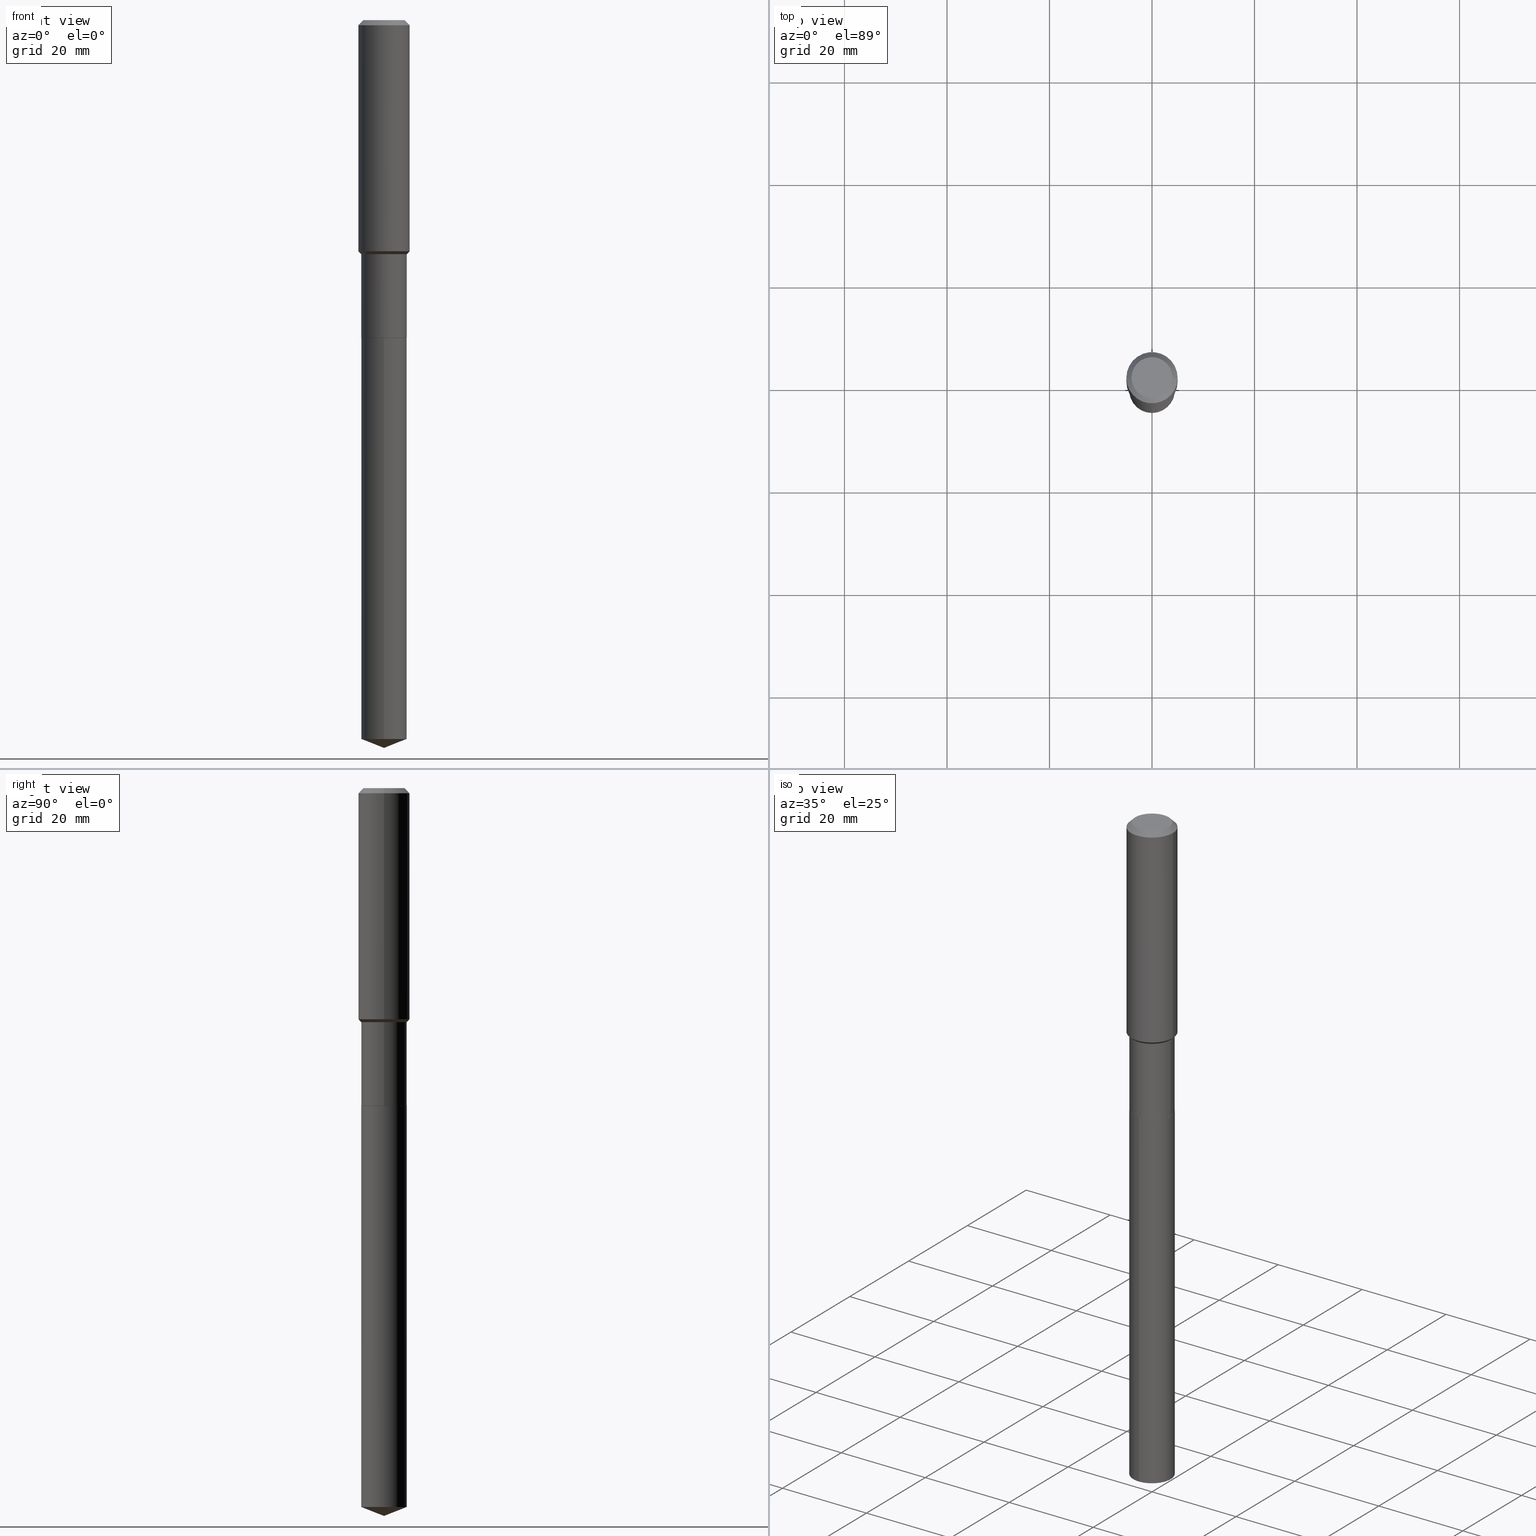
[diagram: canonical four-view strip — front | top / right | iso, engineering-drawing reading convention]
A machine part, canonical four-view strip (front | top / right | iso — engineering-drawing reading convention). The complete STEP part file that produces these views, byte-faithful:
ISO-10303-21;
HEADER;
FILE_DESCRIPTION (( 'STEP AP203' ),
    '1' );
FILE_NAME ('66665.STEP',
    '2024-04-25T03:12:09',
    ( '' ),
    ( '' ),
    'SwSTEP 2.0',
    'SolidWorks 2023',
    '' );
FILE_SCHEMA (( 'CONFIG_CONTROL_DESIGN' ));
ENDSEC;

DATA;
#1 = CARTESIAN_POINT ( 'NONE',  ( 1.244870873051829791E-15, 0.1751999999999806212, -5.521486884672262896 ) ) ;
#2 = EDGE_CURVE ( 'NONE', #385, #469, #427, .T. ) ;
#3 = VERTEX_POINT ( 'NONE', #216 ) ;
#4 = LINE ( 'NONE', #311, #272 ) ;
#5 = ORIENTED_EDGE ( 'NONE', *, *, #151, .T. ) ;
#6 = VECTOR ( 'NONE', #190, 39.37007874015748143 ) ;
#7 = FACE_OUTER_BOUND ( 'NONE', #226, .T. ) ;
#8 = EDGE_LOOP ( 'NONE', ( #50, #55 ) ) ;
#9 =( LENGTH_UNIT ( ) NAMED_UNIT ( * ) SI_UNIT ( $, .METRE. ) );
#10 = ORIENTED_EDGE ( 'NONE', *, *, #192, .T. ) ;
#11 = ADVANCED_FACE ( 'NONE', ( #290 ), #440, .T. ) ;
#12 = LINE ( 'NONE', #59, #57 ) ;
#13 = ORIENTED_EDGE ( 'NONE', *, *, #179, .T. ) ;
#14 = CALENDAR_DATE ( 2024, 24, 4 ) ;
#15 = CIRCLE ( 'NONE', #418, 0.1751999999999999946 ) ;
#16 = CIRCLE ( 'NONE', #149, 0.1751999999999999946 ) ;
#17 = APPROVAL_PERSON_ORGANIZATION ( #465, #395, #127 ) ;
#18 = EDGE_LOOP ( 'NONE', ( #242, #347, #199, #315 ) ) ;
#19 = CYLINDRICAL_SURFACE ( 'NONE', #156, 0.1751999999999999946 ) ;
#20 = DIRECTION ( 'NONE',  ( 1.000000000000000000, -6.982962677686266711E-15, 0.000000000000000000 ) ) ;
#21 = DIRECTION ( 'NONE',  ( 0.000000000000000000, 0.000000000000000000, 1.000000000000000000 ) ) ;
#22 = DIRECTION ( 'NONE',  ( -2.445468806185136597E-29, 3.491481338843145583E-15, 1.000000000000000000 ) ) ;
#23 = EDGE_CURVE ( 'NONE', #184, #122, #72, .T. ) ;
#24 = DIRECTION ( 'NONE',  ( 1.000000000000000000, -6.982962677686265922E-15, 0.000000000000000000 ) ) ;
#25 = CIRCLE ( 'NONE', #214, 0.1751999999999999946 ) ;
#26 = APPROVAL_PERSON_ORGANIZATION ( #405, #254, #177 ) ;
#27 = CARTESIAN_POINT ( 'NONE',  ( 0.1751999999999999391, -1.223415061130633483E-15, 8.543061711194476516E-30 ) ) ;
#28 = CALENDAR_DATE ( 2024, 24, 4 ) ;
#29 = ADVANCED_FACE ( 'NONE', ( #438 ), #302, .T. ) ;
#30 = FACE_OUTER_BOUND ( 'NONE', #92, .T. ) ;
#31 = DIRECTION ( 'NONE',  ( 2.438088387897960049E-29, -3.491481338843145188E-15, -1.000000000000000000 ) ) ;
#32 = EDGE_CURVE ( 'NONE', #313, #321, #293, .T. ) ;
#33 = APPROVAL_PERSON_ORGANIZATION ( #394, #175, #209 ) ;
#34 = APPLICATION_CONTEXT ( 'configuration controlled 3d designs of mechanical parts and assemblies' ) ;
#35 = CYLINDRICAL_SURFACE ( 'NONE', #428, 0.1968500000000001082 ) ;
#36 = EDGE_CURVE ( 'NONE', #469, #385, #15, .T. ) ;
#37 = DIRECTION ( 'NONE',  ( 1.000000000000000000, -6.982962677686263555E-15, 0.000000000000000000 ) ) ;
#38 = ORIENTED_EDGE ( 'NONE', *, *, #415, .F. ) ;
#39 = DIRECTION ( 'NONE',  ( -6.497071151882113525E-15, -0.9304175679820235745, 0.3665012267242993560 ) ) ;
#40 = PRODUCT ( '66665', '66665', '', ( #169 ) ) ;
#41 = AXIS2_PLACEMENT_3D ( 'NONE', #408, #106, #74 ) ;
#42 = DIRECTION ( 'NONE',  ( -2.445428369358333970E-29, 3.491539246680648506E-15, 1.000000000000000000 ) ) ;
#43 = DIRECTION ( 'NONE',  ( -2.445468806185136877E-29, 3.491481338843145188E-15, 1.000000000000000000 ) ) ;
#44 = EDGE_CURVE ( 'NONE', #159, #83, #359, .T. ) ;
#45 = ORIENTED_EDGE ( 'NONE', *, *, #389, .F. ) ;
#46 = CARTESIAN_POINT ( 'NONE',  ( 1.244870873051754849E-15, 0.1751999999999914459, -2.440899999999999626 ) ) ;
#47 = CONICAL_SURFACE ( 'NONE', #165, 0.1746999999999999942, 0.7853981633975507526 ) ;
#48 = CALENDAR_DATE ( 2024, 24, 4 ) ;
#49 = UNCERTAINTY_MEASURE_WITH_UNIT (LENGTH_MEASURE( 1.000000000000000082E-05 ), #251, 'distance_accuracy_value', 'NONE');
#50 = ORIENTED_EDGE ( 'NONE', *, *, #2, .T. ) ;
#51 = DATE_TIME_ROLE ( 'creation_date' ) ;
#52 = CARTESIAN_POINT ( 'NONE',  ( 0.1968500000000002192, -7.575641634954907798E-15, -1.776049999999999018 ) ) ;
#53 = ORIENTED_EDGE ( 'NONE', *, *, #380, .F. ) ;
#54 = DIRECTION ( 'NONE',  ( -2.445428369358333970E-29, 3.491539246680648506E-15, 1.000000000000000000 ) ) ;
#55 = ORIENTED_EDGE ( 'NONE', *, *, #36, .T. ) ;
#56 = CARTESIAN_POINT ( 'NONE',  ( 5.969144809017297917E-29, -8.522356799982231388E-15, -2.440899999999999181 ) ) ;
#57 = VECTOR ( 'NONE', #396, 39.37007874015748854 ) ;
#58 = AXIS2_PLACEMENT_3D ( 'NONE', #235, #152, #456 ) ;
#59 = CARTESIAN_POINT ( 'NONE',  ( 0.1751999999999999114, -7.500051063968953144E-15, -1.797699999999999187 ) ) ;
#60 = APPLICATION_PROTOCOL_DEFINITION ( 'international standard', 'config_control_design', 1994, #82 ) ;
#61 = DIRECTION ( 'NONE',  ( 1.000000000000000000, -6.982962677686260400E-15, 0.000000000000000000 ) ) ;
#62 = COORDINATED_UNIVERSAL_TIME_OFFSET ( 5, 0, .BEHIND. ) ;
#63 = CARTESIAN_POINT ( 'NONE',  ( -0.1751999999999999114, -5.031765129786625160E-15, -1.797699999999999187 ) ) ;
#64 = DIRECTION ( 'NONE',  ( -2.445468806185136597E-29, 3.491481338843145583E-15, 1.000000000000000000 ) ) ;
#65 = CARTESIAN_POINT ( 'NONE',  ( -9.427742298522567634E-47, 1.346031739168368355E-32, 3.855188123715870730E-18 ) ) ;
#66 = AXIS2_PLACEMENT_3D ( 'NONE', #259, #218, #298 ) ;
#67 = ADVANCED_BREP_SHAPE_REPRESENTATION ( '66665', ( #457, #118, #98 ), #455 ) ;
#68 = LINE ( 'NONE', #109, #78 ) ;
#69 = ORIENTED_EDGE ( 'NONE', *, *, #475, .F. ) ;
#70 = CARTESIAN_POINT ( 'NONE',  ( 0.1968500000000001082, -1.374596203102542397E-15, 9.598753983154305062E-30 ) ) ;
#71 = CARTESIAN_POINT ( 'NONE',  ( 4.396219272879018091E-29, -6.276636002838320056E-15, -1.797699999999999187 ) ) ;
#72 = CIRCLE ( 'NONE', #231, 0.1751999999999999114 ) ;
#73 = LOCAL_TIME ( 23, 12, 9.000000000000000000, #382 ) ;
#74 = DIRECTION ( 'NONE',  ( 1.000000000000000000, -6.982962677686265922E-15, 0.000000000000000000 ) ) ;
#75 = EDGE_LOOP ( 'NONE', ( #38, #164, #452, #299 ) ) ;
#76 = LINE ( 'NONE', #46, #392 ) ;
#77 = CARTESIAN_POINT ( 'NONE',  ( 0.1746999999999999942, -9.742280379774020680E-15, -2.440899999999999181 ) ) ;
#78 = VECTOR ( 'NONE', #330, 39.37007874015748143 ) ;
#79 = EDGE_CURVE ( 'NONE', #462, #425, #140, .T. ) ;
#80 = DIRECTION ( 'NONE',  ( -6.982962677686265133E-15, -1.000000000000000000, 6.237095875945806629E-15 ) ) ;
#81 = CARTESIAN_POINT ( 'NONE',  ( 0.1968500000000000250, -1.487948651171581601E-15, -0.03937000000000024508 ) ) ;
#82 = APPLICATION_CONTEXT ( 'configuration controlled 3d designs of mechanical parts and assemblies' ) ;
#83 = VERTEX_POINT ( 'NONE', #52 ) ;
#84 = DIRECTION ( 'NONE',  ( -2.445428369358333970E-29, 3.491539246680648506E-15, 1.000000000000000000 ) ) ;
#85 = EDGE_CURVE ( 'NONE', #425, #462, #271, .T. ) ;
#86 = ORIENTED_EDGE ( 'NONE', *, *, #323, .T. ) ;
#87 = AXIS2_PLACEMENT_3D ( 'NONE', #479, #393, #139 ) ;
#88 = VECTOR ( 'NONE', #407, 39.37007874015748143 ) ;
#89 = FACE_OUTER_BOUND ( 'NONE', #18, .T. ) ;
#90 = ORIENTED_EDGE ( 'NONE', *, *, #352, .T. ) ;
#91 = APPROVAL_STATUS ( 'not_yet_approved' ) ;
#92 = EDGE_LOOP ( 'NONE', ( #69, #301, #202, #417 ) ) ;
#93 = EDGE_CURVE ( 'NONE', #477, #119, #155, .T. ) ;
#94 = PERSON_AND_ORGANIZATION_ROLE ( 'creator' ) ;
#95 = CARTESIAN_POINT ( 'NONE',  ( 5.969144809017297917E-29, -8.522356799982231388E-15, -2.440899999999999181 ) ) ;
#96 = DIRECTION ( 'NONE',  ( -6.982962677686265133E-15, -1.000000000000000000, 3.118547937972903315E-15 ) ) ;
#97 = EDGE_CURVE ( 'NONE', #122, #83, #12, .T. ) ;
#98 = AXIS2_PLACEMENT_3D ( 'NONE', #468, #21, #430 ) ;
#99 = DATE_AND_TIME ( #14, #223 ) ;
#100 = SECURITY_CLASSIFICATION_LEVEL ( 'unclassified' ) ;
#101 = DIRECTION ( 'NONE',  ( 1.000000000000000000, -6.982962677686263555E-15, 0.000000000000000000 ) ) ;
#102 = CLOSED_SHELL ( 'NONE', ( #487, #211, #344, #482, #459 ) ) ;
#103 = CARTESIAN_POINT ( 'NONE',  ( -8.260544145390422756E-28, 1.179428662548396618E-13, 33.77957874015748274 ) ) ;
#104 = CC_DESIGN_PERSON_AND_ORGANIZATION_ASSIGNMENT ( #247, #446, ( #350 ) ) ;
#105 = DIRECTION ( 'NONE',  ( 1.000000000000000000, -6.982962677686265922E-15, 0.000000000000000000 ) ) ;
#106 = DIRECTION ( 'NONE',  ( -2.445468806185136597E-29, 3.491481338843145583E-15, 1.000000000000000000 ) ) ;
#107 = ORIENTED_EDGE ( 'NONE', *, *, #85, .F. ) ;
#108 = EDGE_CURVE ( 'NONE', #184, #159, #208, .T. ) ;
#109 = CARTESIAN_POINT ( 'NONE',  ( -1.223415061130574121E-15, -0.1752000000000085156, -2.440899999999998737 ) ) ;
#110 = EDGE_LOOP ( 'NONE', ( #448, #383, #193, #10 ) ) ;
#111 = DIRECTION ( 'NONE',  ( -2.445428369358333970E-29, 3.491539246680648506E-15, 1.000000000000000000 ) ) ;
#112 = DIRECTION ( 'NONE',  ( 2.445428369358333409E-29, -3.491539246680648506E-15, -1.000000000000000000 ) ) ;
#113 = LINE ( 'NONE', #377, #294 ) ;
#114 = VECTOR ( 'NONE', #210, 39.37007874015748143 ) ;
#115 = CONICAL_SURFACE ( 'NONE', #360, 0.1968500000000000250, 0.7853981633974452814 ) ;
#116 = LOCAL_TIME ( 23, 12, 9.000000000000000000, #252 ) ;
#117 = LINE ( 'NONE', #379, #312 ) ;
#118 = MANIFOLD_SOLID_BREP ( 'Body-Move/Copy2[2]', #371 ) ;
#119 = VERTEX_POINT ( 'NONE', #363 ) ;
#120 = CARTESIAN_POINT ( 'NONE',  ( 5.969144809017297917E-29, -8.522356799982231388E-15, -2.440899999999999181 ) ) ;
#121 = ADVANCED_FACE ( 'NONE', ( #279 ), #170, .F. ) ;
#122 = VERTEX_POINT ( 'NONE', #289 ) ;
#123 = CONICAL_SURFACE ( 'NONE', #66, 0.1751999999999999114, 0.7853981633974482790 ) ;
#124 = ORIENTED_EDGE ( 'NONE', *, *, #406, .T. ) ;
#125 = CONICAL_SURFACE ( 'NONE', #58, 0.1746999999999999942, 0.7853981633975507526 ) ;
#126 = AXIS2_PLACEMENT_3D ( 'NONE', #187, #337, #424 ) ;
#127 = APPROVAL_ROLE ( '' ) ;
#128 = EDGE_LOOP ( 'NONE', ( #422, #124, #45, #224 ) ) ;
#129 = VERTEX_POINT ( 'NONE', #145 ) ;
#130 = PERSON_AND_ORGANIZATION ( #351, #172 ) ;
#131 = ORIENTED_EDGE ( 'NONE', *, *, #32, .T. ) ;
#132 = AXIS2_PLACEMENT_3D ( 'NONE', #253, #22, #463 ) ;
#133 = AXIS2_PLACEMENT_3D ( 'NONE', #374, #420, #345 ) ;
#134 = EDGE_CURVE ( 'NONE', #122, #184, #221, .T. ) ;
#135 = CARTESIAN_POINT ( 'NONE',  ( 9.627810689950943645E-31, -1.374596203102555315E-16, -0.03937000000000024508 ) ) ;
#136 = CARTESIAN_POINT ( 'NONE',  ( 4.396219272879018091E-29, -6.276636002838320056E-15, -1.797699999999999187 ) ) ;
#137 = CARTESIAN_POINT ( 'NONE',  ( 0.000000000000000000, 0.000000000000000000, 0.000000000000000000 ) ) ;
#138 = ADVANCED_FACE ( 'NONE', ( #437 ), #123, .T. ) ;
#139 = DIRECTION ( 'NONE',  ( -1.000000000000000000, 6.982962677686265922E-15, 0.000000000000000000 ) ) ;
#140 = CIRCLE ( 'NONE', #205, 0.1746999999999999942 ) ;
#141 = CARTESIAN_POINT ( 'NONE',  ( -4.713871149261283817E-47, 6.730158695841841775E-33, 1.927594061857935365E-18 ) ) ;
#142 = CONICAL_SURFACE ( 'NONE', #341, 99.94676754583925060, 1.195550537616117071 ) ;
#143 = ORIENTED_EDGE ( 'NONE', *, *, #23, .T. ) ;
#144 = EDGE_CURVE ( 'NONE', #83, #434, #222, .T. ) ;
#145 = CARTESIAN_POINT ( 'NONE',  ( -0.1751999999999999946, -6.153752658023869285E-15, -2.440399999999999014 ) ) ;
#146 = LINE ( 'NONE', #27, #399 ) ;
#147 = ORIENTED_EDGE ( 'NONE', *, *, #79, .F. ) ;
#148 = CARTESIAN_POINT ( 'NONE',  ( -0.1968500000000000250, -1.770549150737551717E-15, -0.03937000000000024508 ) ) ;
#149 = AXIS2_PLACEMENT_3D ( 'NONE', #376, #42, #80 ) ;
#150 = DIRECTION ( 'NONE',  ( -2.445468806185136597E-29, 3.491481338843145583E-15, 1.000000000000000000 ) ) ;
#151 = EDGE_CURVE ( 'NONE', #119, #477, #473, .T. ) ;
#152 = DIRECTION ( 'NONE',  ( -2.445468806185136597E-29, 3.491481338843145583E-15, 1.000000000000000000 ) ) ;
#153 = ADVANCED_FACE ( 'NONE', ( #220 ), #35, .T. ) ;
#154 = FACE_OUTER_BOUND ( 'NONE', #429, .T. ) ;
#155 = CIRCLE ( 'NONE', #132, 0.1574800000000000089 ) ;
#156 = AXIS2_PLACEMENT_3D ( 'NONE', #56, #287, #319 ) ;
#157 = ORIENTED_EDGE ( 'NONE', *, *, #23, .F. ) ;
#158 = DIRECTION ( 'NONE',  ( -0.7071067811865453523, 2.468850131082234184E-15, -0.7071067811865496822 ) ) ;
#159 = VERTEX_POINT ( 'NONE', #178 ) ;
#160 = CC_DESIGN_PERSON_AND_ORGANIZATION_ASSIGNMENT ( #130, #171, ( #40 ) ) ;
#161 = CYLINDRICAL_SURFACE ( 'NONE', #250, 0.1751999999999999946 ) ;
#162 = DIRECTION ( 'NONE',  ( -6.982962677686265133E-15, -1.000000000000000000, 3.118547937972903315E-15 ) ) ;
#163 = CARTESIAN_POINT ( 'NONE',  ( 5.969144809017297917E-29, -8.522356799982231388E-15, -2.440899999999999181 ) ) ;
#164 = ORIENTED_EDGE ( 'NONE', *, *, #380, .T. ) ;
#165 = AXIS2_PLACEMENT_3D ( 'NONE', #120, #150, #266 ) ;
#166 = CC_DESIGN_APPROVAL ( #254, ( #436 ) ) ;
#167 = CARTESIAN_POINT ( 'NONE',  ( 0.1574800000000000089, -1.284169937930321189E-15, 3.855188123724205385E-18 ) ) ;
#168 = ORIENTED_EDGE ( 'NONE', *, *, #144, .F. ) ;
#169 = MECHANICAL_CONTEXT ( 'NONE', #34, 'mechanical' ) ;
#170 = PLANE ( 'NONE',  #180 ) ;
#171 = PERSON_AND_ORGANIZATION_ROLE ( 'design_owner' ) ;
#172 = ORGANIZATION ( 'UNSPECIFIED', 'UNSPECIFIED', '' ) ;
#173 = DIRECTION ( 'NONE',  ( -2.445468806185136597E-29, 3.491481338843145583E-15, 1.000000000000000000 ) ) ;
#174 = APPROVAL_DATE_TIME ( #327, #254 ) ;
#175 = APPROVAL ( #91, 'UNSPECIFIED' ) ;
#176 = CARTESIAN_POINT ( 'NONE',  ( 9.627810689950943645E-31, -1.374596203102555315E-16, -0.03937000000000024508 ) ) ;
#177 = APPROVAL_ROLE ( '' ) ;
#178 = CARTESIAN_POINT ( 'NONE',  ( -0.1968500000000002192, -4.802342056508606825E-15, -1.776049999999999018 ) ) ;
#179 = EDGE_CURVE ( 'NONE', #404, #122, #146, .T. ) ;
#180 = AXIS2_PLACEMENT_3D ( 'NONE', #163, #322, #470 ) ;
#181 = DIRECTION ( 'NONE',  ( -6.982962677686265922E-15, -1.000000000000000000, 3.498627837350029466E-15 ) ) ;
#182 = EDGE_LOOP ( 'NONE', ( #277, #237, #232, #464 ) ) ;
#183 = FACE_OUTER_BOUND ( 'NONE', #110, .T. ) ;
#184 = VERTEX_POINT ( 'NONE', #329 ) ;
#185 = EDGE_LOOP ( 'NONE', ( #269, #189, #413, #168 ) ) ;
#186 = EDGE_CURVE ( 'NONE', #462, #404, #292, .T. ) ;
#187 = CARTESIAN_POINT ( 'NONE',  ( -8.260544145390422756E-28, 1.179428662548396618E-13, 33.77957874015748274 ) ) ;
#188 = AXIS2_PLACEMENT_3D ( 'NONE', #490, #112, #267 ) ;
#189 = ORIENTED_EDGE ( 'NONE', *, *, #475, .T. ) ;
#190 = DIRECTION ( 'NONE',  ( -0.7071067811866199593, 7.493145998870616062E-15, 0.7071067811864750752 ) ) ;
#191 = LINE ( 'NONE', #81, #256 ) ;
#192 = EDGE_CURVE ( 'NONE', #361, #434, #305, .T. ) ;
#193 = ORIENTED_EDGE ( 'NONE', *, *, #397, .T. ) ;
#194 = LINE ( 'NONE', #375, #400 ) ;
#195 = VECTOR ( 'NONE', #447, 39.37007874015748143 ) ;
#196 = ADVANCED_FACE ( 'NONE', ( #183 ), #115, .T. ) ;
#197 = AXIS2_PLACEMENT_3D ( 'NONE', #304, #84, #238 ) ;
#198 =( NAMED_UNIT ( * ) PLANE_ANGLE_UNIT ( ) SI_UNIT ( $, .RADIAN. ) );
#199 = ORIENTED_EDGE ( 'NONE', *, *, #2, .F. ) ;
#200 = DESIGN_CONTEXT ( 'detailed design', #82, 'design' ) ;
#201 = DIRECTION ( 'NONE',  ( -2.445468806185136597E-29, 3.491481338843145583E-15, 1.000000000000000000 ) ) ;
#202 = ORIENTED_EDGE ( 'NONE', *, *, #144, .T. ) ;
#203 = DATE_AND_TIME ( #386, #421 ) ;
#204 = EDGE_CURVE ( 'NONE', #129, #404, #25, .T. ) ;
#205 = AXIS2_PLACEMENT_3D ( 'NONE', #320, #201, #61 ) ;
#206 = EDGE_LOOP ( 'NONE', ( #234, #131, #432 ) ) ;
#207 = LOCAL_TIME ( 23, 12, 9.000000000000000000, #62 ) ;
#208 = LINE ( 'NONE', #63, #391 ) ;
#209 = APPROVAL_ROLE ( '' ) ;
#210 = DIRECTION ( 'NONE',  ( 6.611014441532060278E-15, 0.9304175679820263500, 0.3665012267242928057 ) ) ;
#211 = ADVANCED_FACE ( 'NONE', ( #439 ), #142, .T. ) ;
#212 = DIRECTION ( 'NONE',  ( -0.7071067811865474617, 7.493145998870352582E-15, 0.7071067811865474617 ) ) ;
#213 = DATE_AND_TIME ( #444, #116 ) ;
#214 = AXIS2_PLACEMENT_3D ( 'NONE', #335, #478, #101 ) ;
#215 = DIRECTION ( 'NONE',  ( 1.000000000000000000, -6.982962677686266711E-15, 4.876176775795935793E-29 ) ) ;
#216 = CARTESIAN_POINT ( 'NONE',  ( -1.223415061130498390E-15, -0.1752000000000192015, -5.521486884672260231 ) ) ;
#217 = DATE_TIME_ROLE ( 'classification_date' ) ;
#218 = DIRECTION ( 'NONE',  ( -2.445468806185136597E-29, 3.491481338843145583E-15, 1.000000000000000000 ) ) ;
#219 = ADVANCED_FACE ( 'NONE', ( #30 ), #257, .T. ) ;
#220 = FACE_OUTER_BOUND ( 'NONE', #185, .T. ) ;
#221 = CIRCLE ( 'NONE', #338, 0.1751999999999999114 ) ;
#222 = LINE ( 'NONE', #70, #195 ) ;
#223 = LOCAL_TIME ( 23, 12, 9.000000000000000000, #278 ) ;
#224 = ORIENTED_EDGE ( 'NONE', *, *, #186, .F. ) ;
#225 = CYLINDRICAL_SURFACE ( 'NONE', #133, 0.1751999999999999391 ) ;
#226 = EDGE_LOOP ( 'NONE', ( #381, #318, #13, #157 ) ) ;
#227 = CARTESIAN_POINT ( 'NONE',  ( 0.1968500000000000250, -1.512055823412797189E-15, -0.03937000000000024508 ) ) ;
#228 = CC_DESIGN_PERSON_AND_ORGANIZATION_ASSIGNMENT ( #297, #291, ( #436 ) ) ;
#229 = EDGE_LOOP ( 'NONE', ( #147, #107 ) ) ;
#230 = CARTESIAN_POINT ( 'NONE',  ( 1.244870873051830580E-15, 0.1751999999999914459, -2.440899999999999626 ) ) ;
#231 = AXIS2_PLACEMENT_3D ( 'NONE', #136, #64, #249 ) ;
#232 = ORIENTED_EDGE ( 'NONE', *, *, #265, .F. ) ;
#233 = PLANE ( 'NONE',  #188 ) ;
#234 = ORIENTED_EDGE ( 'NONE', *, *, #435, .F. ) ;
#235 = CARTESIAN_POINT ( 'NONE',  ( 5.969144809017297917E-29, -8.522356799982231388E-15, -2.440899999999999181 ) ) ;
#236 = CC_DESIGN_PERSON_AND_ORGANIZATION_ASSIGNMENT ( #433, #94, ( #350 ) ) ;
#237 = ORIENTED_EDGE ( 'NONE', *, *, #108, .T. ) ;
#238 = DIRECTION ( 'NONE',  ( -6.982962677686265133E-15, -1.000000000000000000, 6.237095875945806629E-15 ) ) ;
#239 = ORIENTED_EDGE ( 'NONE', *, *, #435, .T. ) ;
#240 =( NAMED_UNIT ( * ) SI_UNIT ( $, .STERADIAN. ) SOLID_ANGLE_UNIT ( ) );
#241 = EDGE_CURVE ( 'NONE', #3, #385, #68, .T. ) ;
#242 = ORIENTED_EDGE ( 'NONE', *, *, #471, .T. ) ;
#243 = COORDINATED_UNIVERSAL_TIME_OFFSET ( 5, 0, .BEHIND. ) ;
#244 = DIRECTION ( 'NONE',  ( -2.445428369358333970E-29, 3.491539246680648506E-15, 1.000000000000000000 ) ) ;
#245 = ORIENTED_EDGE ( 'NONE', *, *, #134, .F. ) ;
#246 = CC_DESIGN_PERSON_AND_ORGANIZATION_ASSIGNMENT ( #324, #472, ( #346 ) ) ;
#247 = PERSON_AND_ORGANIZATION ( #351, #172 ) ;
#248 = DIRECTION ( 'NONE',  ( -2.445468806185136597E-29, 3.491481338843145583E-15, 1.000000000000000000 ) ) ;
#249 = DIRECTION ( 'NONE',  ( 1.000000000000000000, -6.982962677686266711E-15, 0.000000000000000000 ) ) ;
#250 = AXIS2_PLACEMENT_3D ( 'NONE', #358, #54, #162 ) ;
#251 =( CONVERSION_BASED_UNIT ( 'INCH', #364 ) LENGTH_UNIT ( ) NAMED_UNIT ( #328 ) );
#252 = COORDINATED_UNIVERSAL_TIME_OFFSET ( 5, 0, .BEHIND. ) ;
#253 = CARTESIAN_POINT ( 'NONE',  ( -9.427742298522567634E-47, 1.346031739168368355E-32, 3.855188123715870730E-18 ) ) ;
#254 = APPROVAL ( #402, 'UNSPECIFIED' ) ;
#255 = DIRECTION ( 'NONE',  ( 1.000000000000000000, -6.982962677686265922E-15, 4.876223630392693006E-29 ) ) ;
#256 = VECTOR ( 'NONE', #274, 39.37007874015748143 ) ;
#257 = CYLINDRICAL_SURFACE ( 'NONE', #419, 0.1968500000000001082 ) ;
#258 = DIRECTION ( 'NONE',  ( -2.445428369358333970E-29, 3.491539246680648506E-15, 1.000000000000000000 ) ) ;
#259 = CARTESIAN_POINT ( 'NONE',  ( 4.396219272879018091E-29, -6.276636002838320056E-15, -1.797699999999999187 ) ) ;
#260 = DIRECTION ( 'NONE',  ( -2.445428369358333970E-29, 3.491539246680648506E-15, 1.000000000000000000 ) ) ;
#261 = ORIENTED_EDGE ( 'NONE', *, *, #93, .T. ) ;
#262 = AXIS2_PLACEMENT_3D ( 'NONE', #65, #445, #255 ) ;
#263 = FACE_OUTER_BOUND ( 'NONE', #285, .T. ) ;
#264 = CIRCLE ( 'NONE', #317, 0.1751999999999999946 ) ;
#265 = EDGE_CURVE ( 'NONE', #83, #159, #466, .T. ) ;
#266 = DIRECTION ( 'NONE',  ( 1.000000000000000000, -6.982962677686260400E-15, 0.000000000000000000 ) ) ;
#267 = DIRECTION ( 'NONE',  ( 6.982962677686265922E-15, 1.000000000000000000, -3.491539246680648506E-15 ) ) ;
#268 = ADVANCED_FACE ( 'NONE', ( #485 ), #480, .F. ) ;
#269 = ORIENTED_EDGE ( 'NONE', *, *, #265, .T. ) ;
#270 = DIRECTION ( 'NONE',  ( -2.445468806185136597E-29, 3.491481338843145583E-15, 1.000000000000000000 ) ) ;
#271 = CIRCLE ( 'NONE', #349, 0.1746999999999999942 ) ;
#272 = VECTOR ( 'NONE', #451, 39.37007874015748143 ) ;
#273 = CC_DESIGN_DATE_AND_TIME_ASSIGNMENT ( #213, #217, ( #436 ) ) ;
#274 = DIRECTION ( 'NONE',  ( 0.7071067811865453523, -7.319954787623248157E-15, -0.7071067811865496822 ) ) ;
#275 = EDGE_LOOP ( 'NONE', ( #5, #261 ) ) ;
#276 = DIRECTION ( 'NONE',  ( 1.000000000000000000, -6.982962677686266711E-15, 4.876176775795935793E-29 ) ) ;
#277 = ORIENTED_EDGE ( 'NONE', *, *, #134, .T. ) ;
#278 = COORDINATED_UNIVERSAL_TIME_OFFSET ( 5, 0, .BEHIND. ) ;
#279 = FACE_OUTER_BOUND ( 'NONE', #229, .T. ) ;
#280 = ORIENTED_EDGE ( 'NONE', *, *, #93, .F. ) ;
#281 = CC_DESIGN_DATE_AND_TIME_ASSIGNMENT ( #354, #51, ( #346 ) ) ;
#282 = ORIENTED_EDGE ( 'NONE', *, *, #179, .F. ) ;
#283 = APPROVAL_DATE_TIME ( #203, #395 ) ;
#284 = DIRECTION ( 'NONE',  ( -2.445468806185136597E-29, 3.491481338843145583E-15, 1.000000000000000000 ) ) ;
#285 = EDGE_LOOP ( 'NONE', ( #353, #90, #245, #282 ) ) ;
#286 = EDGE_CURVE ( 'NONE', #434, #361, #366, .T. ) ;
#287 = DIRECTION ( 'NONE',  ( -2.445428369358333970E-29, 3.491539246680648506E-15, 1.000000000000000000 ) ) ;
#288 = CC_DESIGN_APPROVAL ( #175, ( #346 ) ) ;
#289 = CARTESIAN_POINT ( 'NONE',  ( 0.1751999999999999114, -7.500051063968953144E-15, -1.797699999999999187 ) ) ;
#290 = FACE_OUTER_BOUND ( 'NONE', #357, .T. ) ;
#291 = PERSON_AND_ORGANIZATION_ROLE ( 'classification_officer' ) ;
#292 = LINE ( 'NONE', #326, #88 ) ;
#293 = LINE ( 'NONE', #442, #114 ) ;
#294 = VECTOR ( 'NONE', #43, 39.37007874015748143 ) ;
#295 = DIRECTION ( 'NONE',  ( -1.000000000000000000, 6.982962677686265922E-15, -4.876176775795935793E-29 ) ) ;
#296 = CARTESIAN_POINT ( 'NONE',  ( 5.969144809017297917E-29, -8.522356799982231388E-15, -2.440899999999999181 ) ) ;
#297 = PERSON_AND_ORGANIZATION ( #351, #172 ) ;
#298 = DIRECTION ( 'NONE',  ( 1.000000000000000000, -6.982962677686266711E-15, 0.000000000000000000 ) ) ;
#299 = ORIENTED_EDGE ( 'NONE', *, *, #36, .F. ) ;
#300 = CARTESIAN_POINT ( 'NONE',  ( 9.627810689950943645E-31, -1.374596203102555315E-16, -0.03937000000000024508 ) ) ;
#301 = ORIENTED_EDGE ( 'NONE', *, *, #44, .T. ) ;
#302 = CONICAL_SURFACE ( 'NONE', #87, 0.1968500000000000250, 0.7853981633974452814 ) ;
#303 = PRODUCT_RELATED_PRODUCT_CATEGORY ( 'detail', '', ( #40 ) ) ;
#304 = CARTESIAN_POINT ( 'NONE',  ( 1.350249937106805786E-28, -1.927834681062510951E-14, -5.521486884672262008 ) ) ;
#305 = CIRCLE ( 'NONE', #449, 0.1968500000000000250 ) ;
#306 = DIRECTION ( 'NONE',  ( -2.445468806185136597E-29, 3.491481338843145583E-15, 1.000000000000000000 ) ) ;
#307 = ORIENTED_EDGE ( 'NONE', *, *, #406, .F. ) ;
#308 = CARTESIAN_POINT ( 'NONE',  ( 5.967922074614205116E-29, -8.520611059312809095E-15, -2.440399999999999014 ) ) ;
#309 = ADVANCED_FACE ( 'NONE', ( #263 ), #225, .T. ) ;
#310 = ORIENTED_EDGE ( 'NONE', *, *, #108, .F. ) ;
#311 = CARTESIAN_POINT ( 'NONE',  ( -0.1751999999999999391, 1.244870873051695093E-15, -8.617974278126592972E-30 ) ) ;
#312 = VECTOR ( 'NONE', #158, 39.37007874015748143 ) ;
#313 = VERTEX_POINT ( 'NONE', #460 ) ;
#314 = FACE_OUTER_BOUND ( 'NONE', #128, .T. ) ;
#315 = ORIENTED_EDGE ( 'NONE', *, *, #241, .F. ) ;
#316 = ORIENTED_EDGE ( 'NONE', *, *, #286, .T. ) ;
#317 = AXIS2_PLACEMENT_3D ( 'NONE', #308, #306, #37 ) ;
#318 = ORIENTED_EDGE ( 'NONE', *, *, #204, .T. ) ;
#319 = DIRECTION ( 'NONE',  ( -6.982962677686265133E-15, -1.000000000000000000, 3.118547937972903315E-15 ) ) ;
#320 = CARTESIAN_POINT ( 'NONE',  ( 5.969144809017297917E-29, -8.522356799982231388E-15, -2.440899999999999181 ) ) ;
#321 = VERTEX_POINT ( 'NONE', #1 ) ;
#322 = DIRECTION ( 'NONE',  ( -2.438088387897960049E-29, 3.491481338843145188E-15, 1.000000000000000000 ) ) ;
#323 = EDGE_CURVE ( 'NONE', #477, #434, #191, .T. ) ;
#324 = PERSON_AND_ORGANIZATION ( #351, #172 ) ;
#325 = CC_DESIGN_SECURITY_CLASSIFICATION ( #436, ( #350 ) ) ;
#326 = CARTESIAN_POINT ( 'NONE',  ( 0.1746999999999999942, -9.742280379774020680E-15, -2.440899999999999181 ) ) ;
#327 = DATE_AND_TIME ( #28, #207 ) ;
#328 = DIMENSIONAL_EXPONENTS ( 1.000000000000000000, 0.000000000000000000, 0.000000000000000000, 0.000000000000000000, 0.000000000000000000, 0.000000000000000000, 0.000000000000000000 ) ;
#329 = CARTESIAN_POINT ( 'NONE',  ( -0.1751999999999999114, -6.153752658023869285E-15, -1.797699999999999187 ) ) ;
#330 = DIRECTION ( 'NONE',  ( -2.445428369358333970E-29, 3.491539246680648506E-15, 1.000000000000000000 ) ) ;
#331 = ORIENTED_EDGE ( 'NONE', *, *, #204, .F. ) ;
#332 = CIRCLE ( 'NONE', #197, 0.1751999999999999946 ) ;
#333 = DIRECTION ( 'NONE',  ( -2.445468806185136597E-29, 3.491481338843145583E-15, 1.000000000000000000 ) ) ;
#334 = EDGE_LOOP ( 'NONE', ( #373, #239, #53 ) ) ;
#335 = CARTESIAN_POINT ( 'NONE',  ( 5.967922074614205116E-29, -8.520611059312809095E-15, -2.440399999999999014 ) ) ;
#336 = ADVANCED_FACE ( 'NONE', ( #7 ), #423, .T. ) ;
#337 = DIRECTION ( 'NONE',  ( -2.445428369358333970E-29, 3.491539246680648506E-15, 1.000000000000000000 ) ) ;
#338 = AXIS2_PLACEMENT_3D ( 'NONE', #71, #173, #372 ) ;
#339 = AXIS2_PLACEMENT_3D ( 'NONE', #141, #31, #295 ) ;
#340 = FACE_OUTER_BOUND ( 'NONE', #8, .T. ) ;
#341 = AXIS2_PLACEMENT_3D ( 'NONE', #103, #260, #181 ) ;
#342 = CC_DESIGN_APPROVAL ( #395, ( #350 ) ) ;
#343 = CARTESIAN_POINT ( 'NONE',  ( -1.223415061130574121E-15, -0.1752000000000085156, -2.440899999999998737 ) ) ;
#344 = ADVANCED_FACE ( 'NONE', ( #348 ), #411, .T. ) ;
#345 = DIRECTION ( 'NONE',  ( 1.000000000000000000, -6.982962677686266711E-15, 4.876176775795935793E-29 ) ) ;
#346 = PRODUCT_DEFINITION ( 'UNKNOWN', '', #350, #200 ) ;
#347 = ORIENTED_EDGE ( 'NONE', *, *, #415, .T. ) ;
#348 = FACE_OUTER_BOUND ( 'NONE', #334, .T. ) ;
#349 = AXIS2_PLACEMENT_3D ( 'NONE', #95, #248, #356 ) ;
#350 = PRODUCT_DEFINITION_FORMATION_WITH_SPECIFIED_SOURCE ( 'ANY', '', #40, .NOT_KNOWN. ) ;
#351 = PERSON ( 'UNSPECIFIED', 'UNSPECIFIED', 'UNSPECIFIED', ('UNSPECIFIED'), ('UNSPECIFIED'), ('UNSPECIFIED') ) ;
#352 = EDGE_CURVE ( 'NONE', #129, #184, #4, .T. ) ;
#353 = ORIENTED_EDGE ( 'NONE', *, *, #389, .T. ) ;
#354 = DATE_AND_TIME ( #48, #73 ) ;
#355 = APPROVAL_STATUS ( 'not_yet_approved' ) ;
#356 = DIRECTION ( 'NONE',  ( 1.000000000000000000, -6.982962677686260400E-15, 0.000000000000000000 ) ) ;
#357 = EDGE_LOOP ( 'NONE', ( #310, #143, #486, #378 ) ) ;
#358 = CARTESIAN_POINT ( 'NONE',  ( 5.969144809017297917E-29, -8.522356799982231388E-15, -2.440899999999999181 ) ) ;
#359 = CIRCLE ( 'NONE', #489, 0.1968500000000002192 ) ;
#360 = AXIS2_PLACEMENT_3D ( 'NONE', #135, #369, #368 ) ;
#361 = VERTEX_POINT ( 'NONE', #148 ) ;
#362 = APPLICATION_PROTOCOL_DEFINITION ( 'international standard', 'config_control_design', 1994, #34 ) ;
#363 = CARTESIAN_POINT ( 'NONE',  ( -0.1574800000000000089, 1.168406772637159618E-15, 3.855188123707939751E-18 ) ) ;
#364 = LENGTH_MEASURE_WITH_UNIT ( LENGTH_MEASURE( 0.02539999999999999897 ), #9 );
#365 = SHAPE_DEFINITION_REPRESENTATION ( #461, #67 ) ;
#366 = CIRCLE ( 'NONE', #441, 0.1968500000000000250 ) ;
#367 = DIRECTION ( 'NONE',  ( -2.445468806185136877E-29, 3.491481338843145188E-15, 1.000000000000000000 ) ) ;
#368 = DIRECTION ( 'NONE',  ( -1.000000000000000000, 6.982962677686265922E-15, 0.000000000000000000 ) ) ;
#369 = DIRECTION ( 'NONE',  ( 2.445468806185136597E-29, -3.491481338843145583E-15, -1.000000000000000000 ) ) ;
#370 = ADVANCED_FACE ( 'NONE', ( #154 ), #125, .T. ) ;
#371 = CLOSED_SHELL ( 'NONE', ( #431, #29, #153, #138, #309, #336, #11, #219, #196, #268, #121, #370 ) ) ;
#372 = DIRECTION ( 'NONE',  ( 1.000000000000000000, -6.982962677686266711E-15, 0.000000000000000000 ) ) ;
#373 = ORIENTED_EDGE ( 'NONE', *, *, #32, .F. ) ;
#374 = CARTESIAN_POINT ( 'NONE',  ( 0.000000000000000000, 0.000000000000000000, 0.000000000000000000 ) ) ;
#375 = CARTESIAN_POINT ( 'NONE',  ( 1.367116729889776494E-28, -1.951945015856816032E-14, -5.590499999999999581 ) ) ;
#376 = CARTESIAN_POINT ( 'NONE',  ( 1.350249937106805786E-28, -1.927834681062510951E-14, -5.521486884672262008 ) ) ;
#377 = CARTESIAN_POINT ( 'NONE',  ( -0.1968500000000001082, 1.398703375343757985E-15, -9.682923725166787881E-30 ) ) ;
#378 = ORIENTED_EDGE ( 'NONE', *, *, #44, .F. ) ;
#379 = CARTESIAN_POINT ( 'NONE',  ( -0.1968500000000000250, 1.237136582792286225E-15, -0.03937000000000024508 ) ) ;
#380 = EDGE_CURVE ( 'NONE', #321, #3, #332, .T. ) ;
#381 = ORIENTED_EDGE ( 'NONE', *, *, #352, .F. ) ;
#382 = COORDINATED_UNIVERSAL_TIME_OFFSET ( 5, 0, .BEHIND. ) ;
#383 = ORIENTED_EDGE ( 'NONE', *, *, #151, .F. ) ;
#384 = CARTESIAN_POINT ( 'NONE',  ( 5.969144809017297917E-29, -8.522356799982231388E-15, -2.440899999999999181 ) ) ;
#385 = VERTEX_POINT ( 'NONE', #343 ) ;
#386 = CALENDAR_DATE ( 2024, 24, 4 ) ;
#387 = DIRECTION ( 'NONE',  ( -6.982962677686265133E-15, -1.000000000000000000, 3.118547937972903315E-15 ) ) ;
#388 = FACE_OUTER_BOUND ( 'NONE', #75, .T. ) ;
#389 = EDGE_CURVE ( 'NONE', #404, #129, #264, .T. ) ;
#390 = CARTESIAN_POINT ( 'NONE',  ( 4.343274873225108979E-29, -6.201045431852364612E-15, -1.776049999999999018 ) ) ;
#391 = VECTOR ( 'NONE', #212, 39.37007874015748854 ) ;
#392 = VECTOR ( 'NONE', #111, 39.37007874015748143 ) ;
#393 = DIRECTION ( 'NONE',  ( 2.445468806185136597E-29, -3.491481338843145583E-15, -1.000000000000000000 ) ) ;
#394 = PERSON_AND_ORGANIZATION ( #351, #172 ) ;
#395 = APPROVAL ( #355, 'UNSPECIFIED' ) ;
#396 = DIRECTION ( 'NONE',  ( 0.7071067811865474617, -2.468850131082256666E-15, 0.7071067811865474617 ) ) ;
#397 = EDGE_CURVE ( 'NONE', #119, #361, #117, .T. ) ;
#398 = DIRECTION ( 'NONE',  ( 1.000000000000000000, -6.982962677686265922E-15, 0.000000000000000000 ) ) ;
#399 = VECTOR ( 'NONE', #367, 39.37007874015748143 ) ;
#400 = VECTOR ( 'NONE', #39, 39.37007874015748143 ) ;
#401 = CARTESIAN_POINT ( 'NONE',  ( 4.396219272879018091E-29, -6.276636002838320056E-15, -1.797699999999999187 ) ) ;
#402 = APPROVAL_STATUS ( 'not_yet_approved' ) ;
#403 = DIRECTION ( 'NONE',  ( 1.000000000000000000, -6.982962677686266711E-15, 4.876176775795935793E-29 ) ) ;
#404 = VERTEX_POINT ( 'NONE', #453 ) ;
#405 = PERSON_AND_ORGANIZATION ( #351, #172 ) ;
#406 = EDGE_CURVE ( 'NONE', #425, #129, #450, .T. ) ;
#407 = DIRECTION ( 'NONE',  ( 0.7071067811866199593, -2.468850131083015945E-15, 0.7071067811864750752 ) ) ;
#408 = CARTESIAN_POINT ( 'NONE',  ( 4.343274873225108979E-29, -6.201045431852364612E-15, -1.776049999999999018 ) ) ;
#409 = AXIS2_PLACEMENT_3D ( 'NONE', #401, #474, #20 ) ;
#410 = EDGE_LOOP ( 'NONE', ( #280, #86, #316, #467 ) ) ;
#411 = CONICAL_SURFACE ( 'NONE', #126, 99.94676754583925060, 1.195550537616117071 ) ;
#412 = DIRECTION ( 'NONE',  ( -2.445468806185136597E-29, 3.491481338843145583E-15, 1.000000000000000000 ) ) ;
#413 = ORIENTED_EDGE ( 'NONE', *, *, #286, .F. ) ;
#414 = CARTESIAN_POINT ( 'NONE',  ( -0.1746999999999999942, -7.281038640609335813E-15, -2.440899999999999181 ) ) ;
#415 = EDGE_CURVE ( 'NONE', #321, #469, #76, .T. ) ;
#416 = CARTESIAN_POINT ( 'NONE',  ( 0.000000000000000000, 0.000000000000000000, 0.000000000000000000 ) ) ;
#417 = ORIENTED_EDGE ( 'NONE', *, *, #192, .F. ) ;
#418 = AXIS2_PLACEMENT_3D ( 'NONE', #384, #244, #387 ) ;
#419 = AXIS2_PLACEMENT_3D ( 'NONE', #484, #333, #403 ) ;
#420 = DIRECTION ( 'NONE',  ( -2.445468806185136597E-29, 3.491481338843145583E-15, 1.000000000000000000 ) ) ;
#421 = LOCAL_TIME ( 23, 12, 9.000000000000000000, #243 ) ;
#422 = ORIENTED_EDGE ( 'NONE', *, *, #79, .T. ) ;
#423 = CYLINDRICAL_SURFACE ( 'NONE', #483, 0.1751999999999999391 ) ;
#424 = DIRECTION ( 'NONE',  ( -6.982962677686265922E-15, -1.000000000000000000, 3.498627837350029466E-15 ) ) ;
#425 = VERTEX_POINT ( 'NONE', #488 ) ;
#426 = APPROVAL_DATE_TIME ( #99, #175 ) ;
#427 = CIRCLE ( 'NONE', #481, 0.1751999999999999946 ) ;
#428 = AXIS2_PLACEMENT_3D ( 'NONE', #137, #412, #215 ) ;
#429 = EDGE_LOOP ( 'NONE', ( #307, #458, #454, #331 ) ) ;
#430 = DIRECTION ( 'NONE',  ( 1.000000000000000000, 0.000000000000000000, 0.000000000000000000 ) ) ;
#431 = ADVANCED_FACE ( 'NONE', ( #314 ), #47, .T. ) ;
#432 = ORIENTED_EDGE ( 'NONE', *, *, #471, .F. ) ;
#433 = PERSON_AND_ORGANIZATION ( #351, #172 ) ;
#434 = VERTEX_POINT ( 'NONE', #227 ) ;
#435 = EDGE_CURVE ( 'NONE', #313, #3, #194, .T. ) ;
#436 = SECURITY_CLASSIFICATION ( '', '', #100 ) ;
#437 = FACE_OUTER_BOUND ( 'NONE', #182, .T. ) ;
#438 = FACE_OUTER_BOUND ( 'NONE', #410, .T. ) ;
#439 = FACE_OUTER_BOUND ( 'NONE', #206, .T. ) ;
#440 = CONICAL_SURFACE ( 'NONE', #409, 0.1751999999999999114, 0.7853981633974482790 ) ;
#441 = AXIS2_PLACEMENT_3D ( 'NONE', #300, #443, #105 ) ;
#442 = CARTESIAN_POINT ( 'NONE',  ( 1.367136643440330592E-28, -1.951916746408704425E-14, -5.590499999999999581 ) ) ;
#443 = DIRECTION ( 'NONE',  ( -2.445468806185136597E-29, 3.491481338843145583E-15, 1.000000000000000000 ) ) ;
#444 = CALENDAR_DATE ( 2024, 24, 4 ) ;
#445 = DIRECTION ( 'NONE',  ( -2.445468806185136597E-29, 3.491481338843145583E-15, 1.000000000000000000 ) ) ;
#446 = PERSON_AND_ORGANIZATION_ROLE ( 'design_supplier' ) ;
#447 = DIRECTION ( 'NONE',  ( -2.445468806185136877E-29, 3.491481338843145188E-15, 1.000000000000000000 ) ) ;
#448 = ORIENTED_EDGE ( 'NONE', *, *, #323, .F. ) ;
#449 = AXIS2_PLACEMENT_3D ( 'NONE', #176, #476, #398 ) ;
#450 = LINE ( 'NONE', #414, #6 ) ;
#451 = DIRECTION ( 'NONE',  ( -2.445468806185136877E-29, 3.491481338843145188E-15, 1.000000000000000000 ) ) ;
#452 = ORIENTED_EDGE ( 'NONE', *, *, #241, .T. ) ;
#453 = CARTESIAN_POINT ( 'NONE',  ( 0.1751999999999999946, -9.744026120443442973E-15, -2.440399999999999014 ) ) ;
#454 = ORIENTED_EDGE ( 'NONE', *, *, #186, .T. ) ;
#455 =( GEOMETRIC_REPRESENTATION_CONTEXT ( 3 ) GLOBAL_UNCERTAINTY_ASSIGNED_CONTEXT ( ( #49 ) ) GLOBAL_UNIT_ASSIGNED_CONTEXT ( ( #251, #198, #240 ) ) REPRESENTATION_CONTEXT ( 'NONE', 'WORKASPACE' ) );
#456 = DIRECTION ( 'NONE',  ( 1.000000000000000000, -6.982962677686260400E-15, 0.000000000000000000 ) ) ;
#457 = MANIFOLD_SOLID_BREP ( 'Body-Move/Copy2[1]', #102 ) ;
#458 = ORIENTED_EDGE ( 'NONE', *, *, #85, .T. ) ;
#459 = ADVANCED_FACE ( 'NONE', ( #340 ), #233, .F. ) ;
#460 = CARTESIAN_POINT ( 'NONE',  ( 1.367116729889776270E-28, -1.951945015856816032E-14, -5.590499999999999581 ) ) ;
#461 = PRODUCT_DEFINITION_SHAPE ( 'NONE', 'NONE',  #346 ) ;
#462 = VERTEX_POINT ( 'NONE', #77 ) ;
#463 = DIRECTION ( 'NONE',  ( 1.000000000000000000, -6.982962677686265922E-15, 4.876223630392693006E-29 ) ) ;
#464 = ORIENTED_EDGE ( 'NONE', *, *, #97, .F. ) ;
#465 = PERSON_AND_ORGANIZATION ( #351, #172 ) ;
#466 = CIRCLE ( 'NONE', #41, 0.1968500000000002192 ) ;
#467 = ORIENTED_EDGE ( 'NONE', *, *, #397, .F. ) ;
#468 = CARTESIAN_POINT ( 'NONE',  ( 0.000000000000000000, 0.000000000000000000, 0.000000000000000000 ) ) ;
#469 = VERTEX_POINT ( 'NONE', #230 ) ;
#470 = DIRECTION ( 'NONE',  ( 1.000000000000000000, -6.982962677686265922E-15, 4.876176775795935793E-29 ) ) ;
#471 = EDGE_CURVE ( 'NONE', #3, #321, #16, .T. ) ;
#472 = PERSON_AND_ORGANIZATION_ROLE ( 'creator' ) ;
#473 = CIRCLE ( 'NONE', #262, 0.1574800000000000089 ) ;
#474 = DIRECTION ( 'NONE',  ( -2.445468806185136597E-29, 3.491481338843145583E-15, 1.000000000000000000 ) ) ;
#475 = EDGE_CURVE ( 'NONE', #159, #361, #113, .T. ) ;
#476 = DIRECTION ( 'NONE',  ( -2.445468806185136597E-29, 3.491481338843145583E-15, 1.000000000000000000 ) ) ;
#477 = VERTEX_POINT ( 'NONE', #167 ) ;
#478 = DIRECTION ( 'NONE',  ( -2.445468806185136597E-29, 3.491481338843145583E-15, 1.000000000000000000 ) ) ;
#479 = CARTESIAN_POINT ( 'NONE',  ( 9.627810689950943645E-31, -1.374596203102555315E-16, -0.03937000000000024508 ) ) ;
#480 = PLANE ( 'NONE',  #339 ) ;
#481 = AXIS2_PLACEMENT_3D ( 'NONE', #296, #258, #96 ) ;
#482 = ADVANCED_FACE ( 'NONE', ( #388 ), #19, .T. ) ;
#483 = AXIS2_PLACEMENT_3D ( 'NONE', #416, #270, #276 ) ;
#484 = CARTESIAN_POINT ( 'NONE',  ( 0.000000000000000000, 0.000000000000000000, 0.000000000000000000 ) ) ;
#485 = FACE_OUTER_BOUND ( 'NONE', #275, .T. ) ;
#486 = ORIENTED_EDGE ( 'NONE', *, *, #97, .T. ) ;
#487 = ADVANCED_FACE ( 'NONE', ( #89 ), #161, .T. ) ;
#488 = CARTESIAN_POINT ( 'NONE',  ( -0.1746999999999999942, -7.278389413435225401E-15, -2.440899999999999181 ) ) ;
#489 = AXIS2_PLACEMENT_3D ( 'NONE', #390, #284, #24 ) ;
#490 = CARTESIAN_POINT ( 'NONE',  ( 5.969144809017297917E-29, -8.522356799982231388E-15, -2.440899999999999181 ) ) ;
ENDSEC;
END-ISO-10303-21;
